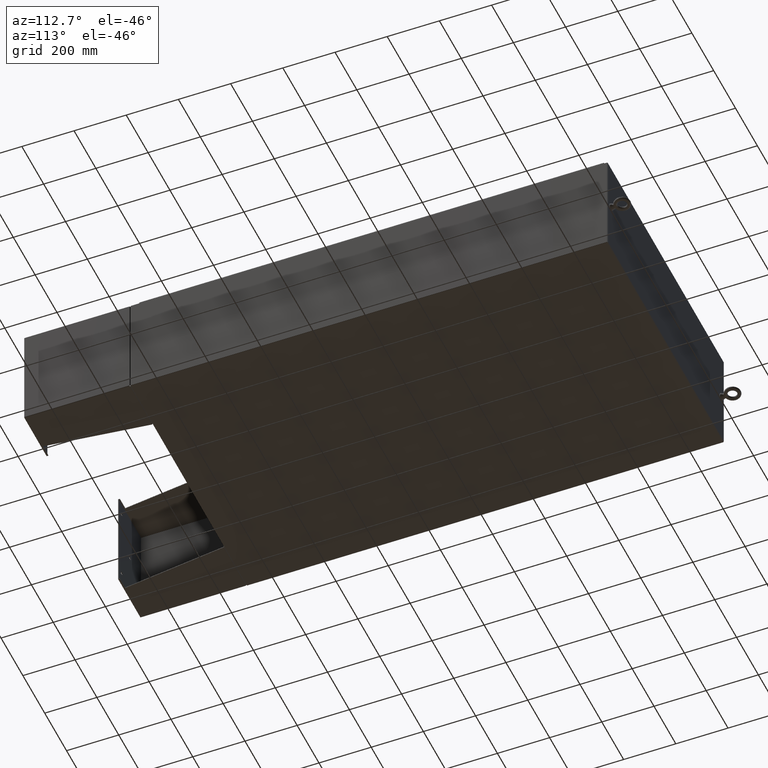
[diagram: clean part render]
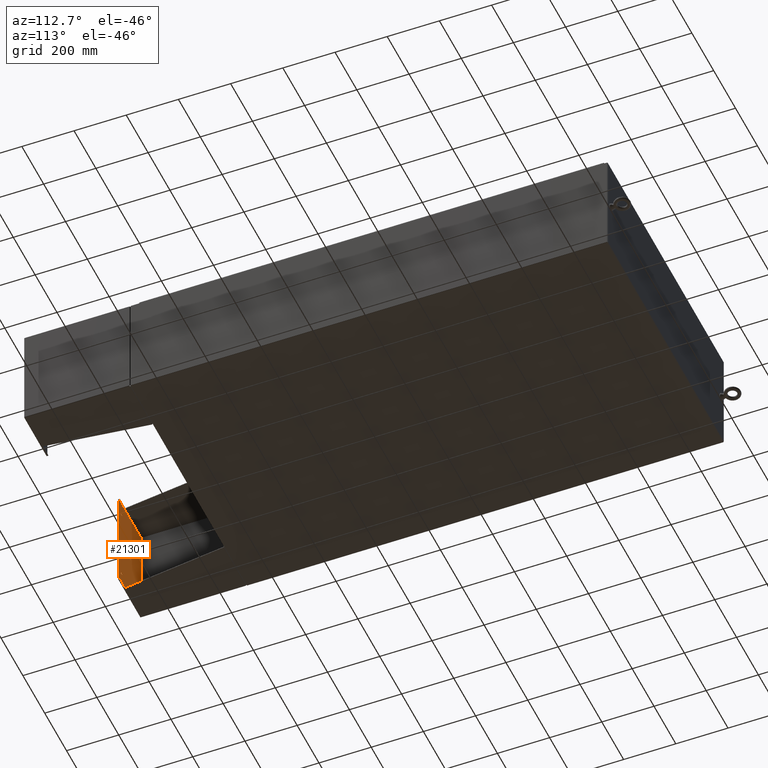
[diagram: same view with one face highlighted and labeled with its STEP entity id]
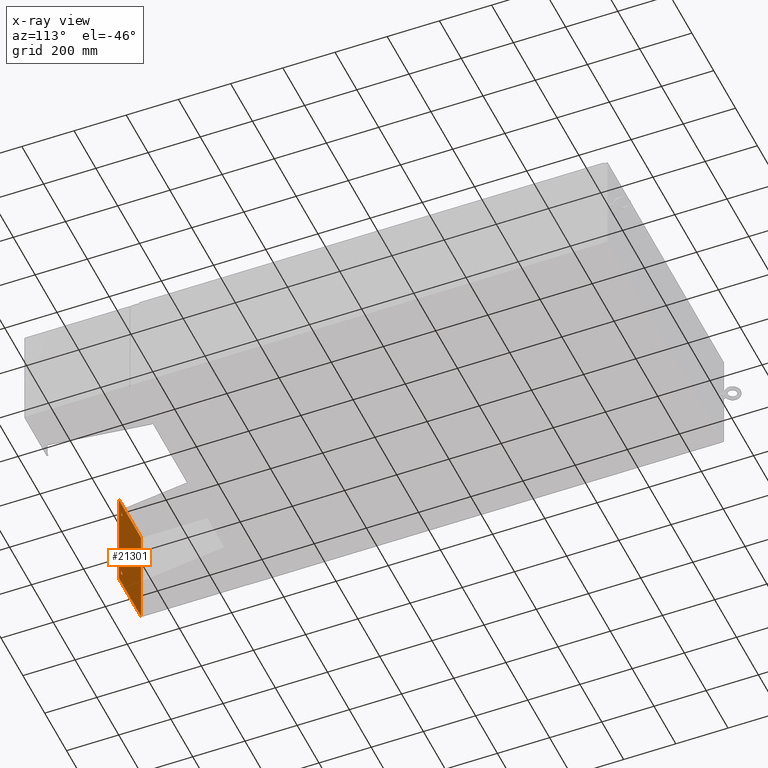
[diagram: x-ray of the same camera — body ghosted, the highlighted face saturated]
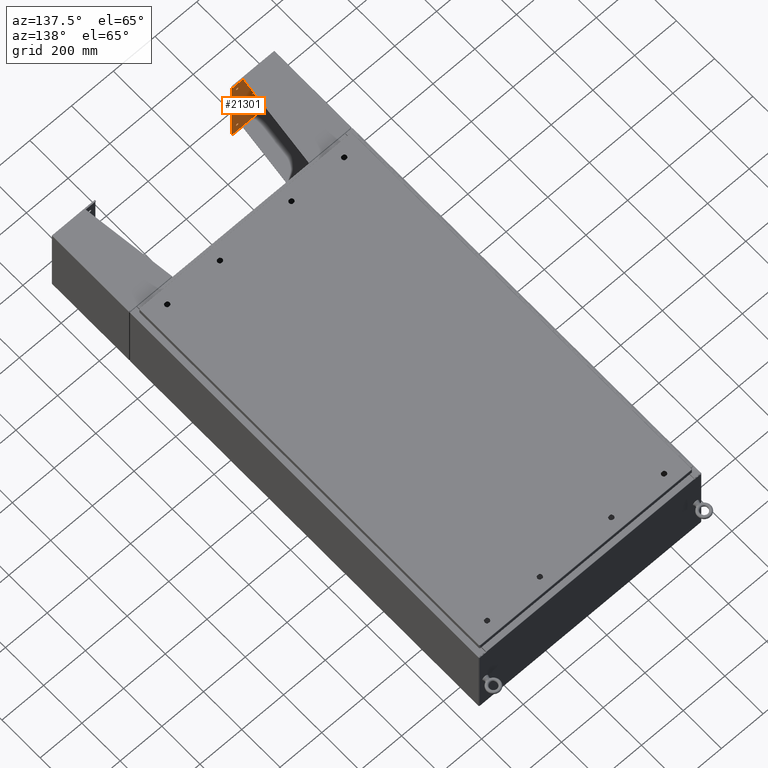
[diagram: same view with one face highlighted and labeled with its STEP entity id]
A machine part, auxiliary view. The second image highlights one B-rep face of the part: STEP entity #21301.
The next image is the same camera in x-ray: the body ghosted, the highlighted face saturated — about 0% of this face is hidden behind the body in this view.
A second angle (auxiliary view) of the same face is appended — the face is thin or edge-on in the first view.
In plain terms, the highlighted planar face has unit normal (-0, -1, -0).
Its self-contained STEP definition (entity closure, byte-faithful):
#141 = VERTEX_POINT ( 'NONE', #7146 ) ;
#942 = VECTOR ( 'NONE', #58806, 39.37007874015748100 ) ;
#1240 = AXIS2_PLACEMENT_3D ( 'NONE', #36242, #3395, #41704 ) ;
#2401 = EDGE_CURVE ( 'NONE', #17858, #141, #69909, .T. ) ;
#2672 = LINE ( 'NONE', #9601, #942 ) ;
#2806 = AXIS2_PLACEMENT_3D ( 'NONE', #55203, #22433, #60697 ) ;
#3395 = DIRECTION ( 'NONE',  ( 0.0000000000000000000, 0.0000000000000000000, 1.000000000000000000 ) ) ;
#5545 = CARTESIAN_POINT ( 'NONE',  ( -7.878999999999998700, -4.000000000000000000, 0.0000000000000000000 ) ) ;
#5655 = ORIENTED_EDGE ( 'NONE', *, *, #70338, .T. ) ;
#5681 = CARTESIAN_POINT ( 'NONE',  ( -5.878999999999999600, -2.999999999999999600, 0.0000000000000000000 ) ) ;
#5854 = EDGE_LOOP ( 'NONE', ( #6429, #70323 ) ) ;
#6429 = ORIENTED_EDGE ( 'NONE', *, *, #2401, .T. ) ;
#6760 = VECTOR ( 'NONE', #23483, 39.37007874015748100 ) ;
#7146 = CARTESIAN_POINT ( 'NONE',  ( 5.628999999999999600, -2.999999999999999600, 0.0000000000000000000 ) ) ;
#8224 = CARTESIAN_POINT ( 'NONE',  ( 0.2500000000000000000, 0.0000000000000000000, 0.0000000000000000000 ) ) ;
#8482 = LINE ( 'NONE', #40747, #6760 ) ;
#8905 = DIRECTION ( 'NONE',  ( -0.0000000000000000000, -1.000000000000000000, -0.0000000000000000000 ) ) ;
#9601 = CARTESIAN_POINT ( 'NONE',  ( -7.878999999999998700, 4.000000000000000000, 0.0000000000000000000 ) ) ;
#11198 = EDGE_LOOP ( 'NONE', ( #60668, #5655, #70574, #39619 ) ) ;
#11211 = DIRECTION ( 'NONE',  ( 1.000000000000000000, 0.0000000000000000000, 0.0000000000000000000 ) ) ;
#11755 = EDGE_CURVE ( 'NONE', #55272, #68581, #20162, .T. ) ;
#11794 = AXIS2_PLACEMENT_3D ( 'NONE', #29511, #25476, #62558 ) ;
#13321 = VERTEX_POINT ( 'NONE', #47367 ) ;
#13735 = VERTEX_POINT ( 'NONE', #8224 ) ;
#14330 = DIRECTION ( 'NONE',  ( 1.000000000000000000, 0.0000000000000000000, 0.0000000000000000000 ) ) ;
#14398 = CARTESIAN_POINT ( 'NONE',  ( -7.878999999999998700, -4.000000000000000000, 0.0000000000000000000 ) ) ;
#16388 = EDGE_CURVE ( 'NONE', #33449, #19159, #8482, .T. ) ;
#17858 = VERTEX_POINT ( 'NONE', #60261 ) ;
#19159 = VERTEX_POINT ( 'NONE', #58093 ) ;
#20162 = CIRCLE ( 'NONE', #70064, 0.2499999999999998100 ) ;
#20659 = LINE ( 'NONE', #14398, #54910 ) ;
#21186 = EDGE_CURVE ( 'NONE', #141, #17858, #38983, .T. ) ;
#21301 = ADVANCED_FACE ( 'NONE', ( #43142, #59401, #57667, #28644 ), #23778, .F. ) ;
#22433 = DIRECTION ( 'NONE',  ( 0.0000000000000000000, 0.0000000000000000000, 1.000000000000000000 ) ) ;
#23483 = DIRECTION ( 'NONE',  ( 0.0000000000000000000, 1.000000000000000000, 0.0000000000000000000 ) ) ;
#23778 = PLANE ( 'NONE',  #55706 ) ;
#23982 = CARTESIAN_POINT ( 'NONE',  ( -5.628999999999999600, -2.999999999999999600, 0.0000000000000000000 ) ) ;
#25294 = CIRCLE ( 'NONE', #1240, 0.2500000000000000000 ) ;
#25476 = DIRECTION ( 'NONE',  ( -0.0000000000000000000, -0.0000000000000000000, -1.000000000000000000 ) ) ;
#28644 = FACE_BOUND ( 'NONE', #5854, .T. ) ;
#29511 = CARTESIAN_POINT ( 'NONE',  ( 5.878999999999999600, -2.999999999999999600, 0.0000000000000000000 ) ) ;
#31235 = AXIS2_PLACEMENT_3D ( 'NONE', #5681, #43878, #11211 ) ;
#33254 = CARTESIAN_POINT ( 'NONE',  ( 5.878999999999999600, -2.999999999999999600, 0.0000000000000000000 ) ) ;
#33449 = VERTEX_POINT ( 'NONE', #36164 ) ;
#36164 = CARTESIAN_POINT ( 'NONE',  ( 7.879000000000000400, -4.000000000000000000, 0.0000000000000000000 ) ) ;
#36242 = CARTESIAN_POINT ( 'NONE',  ( 0.0000000000000000000, 0.0000000000000000000, 0.0000000000000000000 ) ) ;
#36933 = EDGE_CURVE ( 'NONE', #13735, #49259, #25294, .T. ) ;
#38983 = CIRCLE ( 'NONE', #11794, 0.2499999999999998100 ) ;
#39619 = ORIENTED_EDGE ( 'NONE', *, *, #64134, .T. ) ;
#40435 = LINE ( 'NONE', #46970, #67890 ) ;
#40747 = CARTESIAN_POINT ( 'NONE',  ( 7.879000000000000400, -4.000000000000000000, 0.0000000000000000000 ) ) ;
#41704 = DIRECTION ( 'NONE',  ( 1.000000000000000000, 0.0000000000000000000, 0.0000000000000000000 ) ) ;
#41767 = DIRECTION ( 'NONE',  ( -0.0000000000000000000, -0.0000000000000000000, -1.000000000000000000 ) ) ;
#42016 = ORIENTED_EDGE ( 'NONE', *, *, #11755, .F. ) ;
#42601 = DIRECTION ( 'NONE',  ( -1.000000000000000000, 0.0000000000000000000, -0.0000000000000000000 ) ) ;
#42743 = DIRECTION ( 'NONE',  ( 0.0000000000000000000, 0.0000000000000000000, -1.000000000000000000 ) ) ;
#42760 = DIRECTION ( 'NONE',  ( -1.000000000000000000, 0.0000000000000000000, 0.0000000000000000000 ) ) ;
#43142 = FACE_OUTER_BOUND ( 'NONE', #11198, .T. ) ;
#43325 = CIRCLE ( 'NONE', #2806, 0.2500000000000000000 ) ;
#43878 = DIRECTION ( 'NONE',  ( 0.0000000000000000000, 0.0000000000000000000, 1.000000000000000000 ) ) ;
#44351 = VERTEX_POINT ( 'NONE', #5545 ) ;
#46382 = CARTESIAN_POINT ( 'NONE',  ( -6.128999999999998700, -2.999999999999999600, 0.0000000000000000000 ) ) ;
#46970 = CARTESIAN_POINT ( 'NONE',  ( -7.878999999999998700, -4.000000000000000000, 0.0000000000000000000 ) ) ;
#47367 = CARTESIAN_POINT ( 'NONE',  ( -7.878999999999998700, 4.000000000000000000, 0.0000000000000000000 ) ) ;
#47403 = EDGE_LOOP ( 'NONE', ( #47813, #68616 ) ) ;
#47813 = ORIENTED_EDGE ( 'NONE', *, *, #36933, .F. ) ;
#49031 = EDGE_LOOP ( 'NONE', ( #42016, #62141 ) ) ;
#49259 = VERTEX_POINT ( 'NONE', #58164 ) ;
#50069 = EDGE_CURVE ( 'NONE', #49259, #13735, #43325, .T. ) ;
#50103 = DIRECTION ( 'NONE',  ( 0.0000000000000000000, 0.0000000000000000000, 1.000000000000000000 ) ) ;
#53250 = CIRCLE ( 'NONE', #31235, 0.2499999999999998100 ) ;
#54687 = DIRECTION ( 'NONE',  ( 1.000000000000000000, 0.0000000000000000000, 0.0000000000000000000 ) ) ;
#54910 = VECTOR ( 'NONE', #8905, 39.37007874015748100 ) ;
#55203 = CARTESIAN_POINT ( 'NONE',  ( 0.0000000000000000000, 0.0000000000000000000, 0.0000000000000000000 ) ) ;
#55272 = VERTEX_POINT ( 'NONE', #23982 ) ;
#55706 = AXIS2_PLACEMENT_3D ( 'NONE', #56254, #42743, #42601 ) ;
#56254 = CARTESIAN_POINT ( 'NONE',  ( 7.879000000000000400, 4.000000000000000000, 0.0000000000000000000 ) ) ;
#57667 = FACE_BOUND ( 'NONE', #49031, .T. ) ;
#58093 = CARTESIAN_POINT ( 'NONE',  ( 7.879000000000000400, 4.000000000000000000, 0.0000000000000000000 ) ) ;
#58164 = CARTESIAN_POINT ( 'NONE',  ( -0.2500000000000000000, 3.061616997868383000E-017, 0.0000000000000000000 ) ) ;
#58508 = EDGE_CURVE ( 'NONE', #68581, #55272, #53250, .T. ) ;
#58806 = DIRECTION ( 'NONE',  ( -1.000000000000000000, -0.0000000000000000000, -0.0000000000000000000 ) ) ;
#59401 = FACE_BOUND ( 'NONE', #47403, .T. ) ;
#60261 = CARTESIAN_POINT ( 'NONE',  ( 6.128999999999998700, -2.999999999999999600, 0.0000000000000000000 ) ) ;
#60668 = ORIENTED_EDGE ( 'NONE', *, *, #16388, .T. ) ;
#60697 = DIRECTION ( 'NONE',  ( 1.000000000000000000, 0.0000000000000000000, 0.0000000000000000000 ) ) ;
#62141 = ORIENTED_EDGE ( 'NONE', *, *, #58508, .F. ) ;
#62558 = DIRECTION ( 'NONE',  ( -1.000000000000000000, 0.0000000000000000000, 0.0000000000000000000 ) ) ;
#62572 = CARTESIAN_POINT ( 'NONE',  ( -5.878999999999999600, -2.999999999999999600, 0.0000000000000000000 ) ) ;
#64134 = EDGE_CURVE ( 'NONE', #44351, #33449, #40435, .T. ) ;
#67890 = VECTOR ( 'NONE', #14330, 39.37007874015748100 ) ;
#68581 = VERTEX_POINT ( 'NONE', #46382 ) ;
#68616 = ORIENTED_EDGE ( 'NONE', *, *, #50069, .F. ) ;
#69909 = CIRCLE ( 'NONE', #70013, 0.2499999999999998100 ) ;
#70013 = AXIS2_PLACEMENT_3D ( 'NONE', #33254, #41767, #42760 ) ;
#70064 = AXIS2_PLACEMENT_3D ( 'NONE', #62572, #50103, #54687 ) ;
#70243 = EDGE_CURVE ( 'NONE', #13321, #44351, #20659, .T. ) ;
#70323 = ORIENTED_EDGE ( 'NONE', *, *, #21186, .T. ) ;
#70338 = EDGE_CURVE ( 'NONE', #19159, #13321, #2672, .T. ) ;
#70574 = ORIENTED_EDGE ( 'NONE', *, *, #70243, .T. ) ;